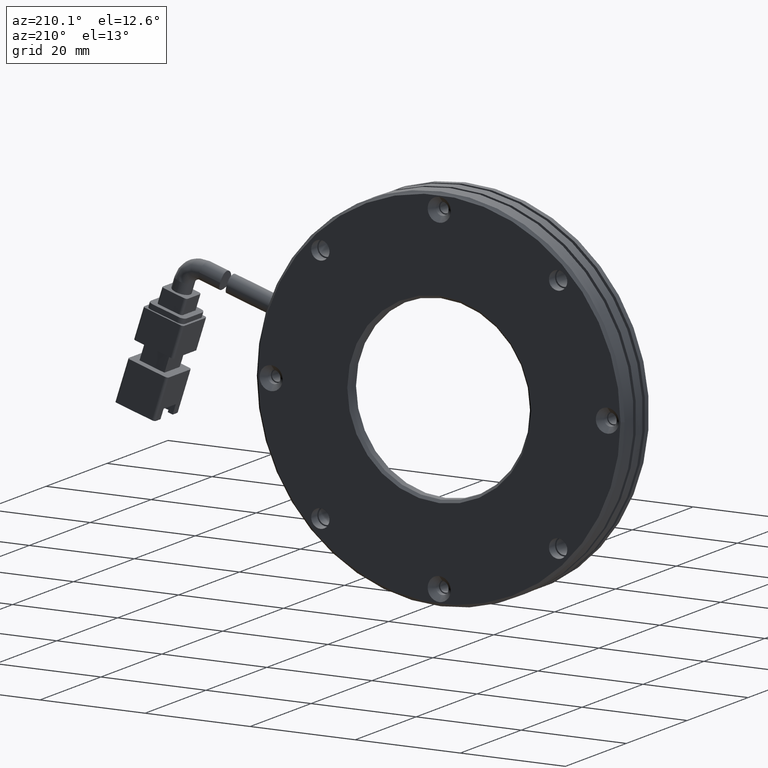
[diagram: clean part render]
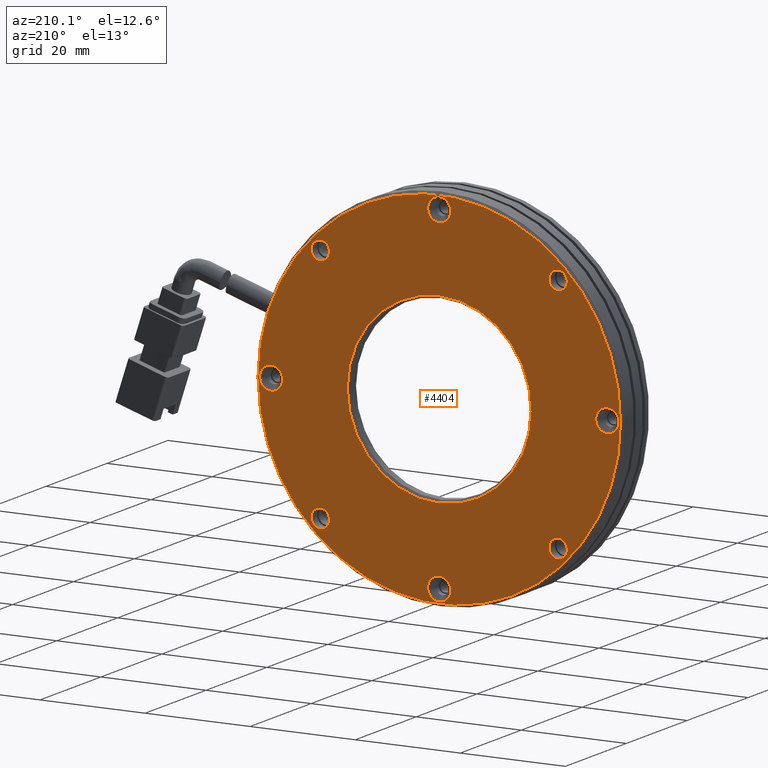
[diagram: same view with one face highlighted and labeled with its STEP entity id]
A machine part, auxiliary view. The second image highlights one B-rep face of the part: STEP entity #4404.
In plain terms, the highlighted planar face has unit normal (0, -1, 0).
Its self-contained STEP definition (entity closure, byte-faithful):
#5 = VERTEX_POINT ( 'NONE', #39972 ) ;
#243 = VERTEX_POINT ( 'NONE', #24588 ) ;
#325 = CARTESIAN_POINT ( 'NONE',  ( -5.709292144904342300, 13.26020291540425200, 17.49999999999998900 ) ) ;
#745 = DIRECTION ( 'NONE',  ( -0.0000000000000000000, 1.000000000000000000, -0.0000000000000000000 ) ) ;
#833 = CARTESIAN_POINT ( 'NONE',  ( -37.70929214490434600, 13.26020291534246800, -2.199999999959364700 ) ) ;
#1410 = ORIENTED_EDGE ( 'NONE', *, *, #10400, .F. ) ;
#1526 = ORIENTED_EDGE ( 'NONE', *, *, #14279, .F. ) ;
#1542 = CARTESIAN_POINT ( 'NONE',  ( 16.91812485306521900, 13.26020291540423700, 22.62741699796945800 ) ) ;
#1550 = ORIENTED_EDGE ( 'NONE', *, *, #30959, .F. ) ;
#1784 = VERTEX_POINT ( 'NONE', #17106 ) ;
#2097 = CIRCLE ( 'NONE', #4721, 2.199999999977081600 ) ;
#2103 = DIRECTION ( 'NONE',  ( -0.0000000000000000000, 1.000000000000000000, 0.0000000000000000000 ) ) ;
#2341 = AXIS2_PLACEMENT_3D ( 'NONE', #19301, #745, #22447 ) ;
#2414 = CARTESIAN_POINT ( 'NONE',  ( -5.709292144904231300, 13.26020291539931200, -34.19999999997710200 ) ) ;
#2694 = CARTESIAN_POINT ( 'NONE',  ( 16.91812485306537200, 13.26020291540423700, -24.37741699796933800 ) ) ;
#2752 = ORIENTED_EDGE ( 'NONE', *, *, #34980, .F. ) ;
#3038 = CIRCLE ( 'NONE', #28589, 2.199999999998453000 ) ;
#3215 = DIRECTION ( 'NONE',  ( -0.0000000000000000000, 1.000000000000000000, 0.0000000000000000000 ) ) ;
#3328 = CARTESIAN_POINT ( 'NONE',  ( -5.709292144904342300, 13.26020291540426600, -2.081668171172168500E-014 ) ) ;
#3634 = CARTESIAN_POINT ( 'NONE',  ( -5.709292144904342300, 13.26020291540425200, -2.081668171172168500E-014 ) ) ;
#3817 = AXIS2_PLACEMENT_3D ( 'NONE', #35354, #16694, #38471 ) ;
#4245 = FACE_BOUND ( 'NONE', #29174, .T. ) ;
#4404 = ADVANCED_FACE ( 'NONE', ( #40226, #5198, #37322, #29053, #20749, #12474, #4245, #36344, #28059, #19763 ), #16688, .F. ) ;
#4442 = AXIS2_PLACEMENT_3D ( 'NONE', #30152, #11515, #33306 ) ;
#4658 = DIRECTION ( 'NONE',  ( 0.0000000000000000000, 0.0000000000000000000, 1.000000000000000000 ) ) ;
#4721 = AXIS2_PLACEMENT_3D ( 'NONE', #7583, #29328, #10679 ) ;
#4821 = ORIENTED_EDGE ( 'NONE', *, *, #18277, .F. ) ;
#4826 = CIRCLE ( 'NONE', #35512, 1.749999999999994700 ) ;
#4980 = CIRCLE ( 'NONE', #7619, 1.749999999999991100 ) ;
#5198 = FACE_BOUND ( 'NONE', #21496, .T. ) ;
#5382 = CARTESIAN_POINT ( 'NONE',  ( -5.709292144904676300, 13.26020291539931200, 29.80000000000152800 ) ) ;
#5495 = VERTEX_POINT ( 'NONE', #11721 ) ;
#5617 = CARTESIAN_POINT ( 'NONE',  ( 16.91812485306521900, 13.26020291540423700, 24.37741699796944800 ) ) ;
#5618 = EDGE_LOOP ( 'NONE', ( #35154, #29003 ) ) ;
#5660 = CIRCLE ( 'NONE', #8803, 1.749999999999991100 ) ;
#6429 = DIRECTION ( 'NONE',  ( 1.000000000000000000, -2.011273595335428600E-016, 0.0000000000000000000 ) ) ;
#6649 = CARTESIAN_POINT ( 'NONE',  ( -37.70929214490434600, 13.26020291534246800, -1.994931997373328200E-014 ) ) ;
#6726 = DIRECTION ( 'NONE',  ( 0.0000000000000000000, 0.0000000000000000000, 1.000000000000000000 ) ) ;
#7084 = EDGE_CURVE ( 'NONE', #5, #29282, #37421, .T. ) ;
#7355 = DIRECTION ( 'NONE',  ( -0.0000000000000000000, 1.000000000000000000, -0.0000000000000000000 ) ) ;
#7583 = CARTESIAN_POINT ( 'NONE',  ( -5.709292144904231300, 13.26020291539931200, -32.00000000000002100 ) ) ;
#7619 = AXIS2_PLACEMENT_3D ( 'NONE', #1542, #23267, #4658 ) ;
#8204 = EDGE_CURVE ( 'NONE', #29077, #13063, #5660, .T. ) ;
#8521 = VERTEX_POINT ( 'NONE', #30853 ) ;
#8803 = AXIS2_PLACEMENT_3D ( 'NONE', #16971, #38747, #20119 ) ;
#9260 = CARTESIAN_POINT ( 'NONE',  ( -28.33670914287390000, 13.26020291540423700, 22.62741699796946200 ) ) ;
#9783 = DIRECTION ( 'NONE',  ( 0.0000000000000000000, 0.0000000000000000000, 1.000000000000000000 ) ) ;
#10400 = EDGE_CURVE ( 'NONE', #13646, #243, #4980, .T. ) ;
#10555 = DIRECTION ( 'NONE',  ( -0.0000000000000000000, 1.000000000000000000, -0.0000000000000000000 ) ) ;
#10560 = DIRECTION ( 'NONE',  ( 0.0000000000000000000, -1.000000000000000000, 0.0000000000000000000 ) ) ;
#10568 = DIRECTION ( 'NONE',  ( -1.982541115402065400E-016, -1.000000000000000000, 0.0000000000000000000 ) ) ;
#10679 = DIRECTION ( 'NONE',  ( 0.0000000000000000000, 0.0000000000000000000, 1.000000000000000000 ) ) ;
#10944 = EDGE_CURVE ( 'NONE', #1784, #36904, #21475, .T. ) ;
#11158 = VERTEX_POINT ( 'NONE', #2414 ) ;
#11515 = DIRECTION ( 'NONE',  ( -0.0000000000000000000, 1.000000000000000000, 0.0000000000000000000 ) ) ;
#11721 = CARTESIAN_POINT ( 'NONE',  ( -28.33670914287390000, 13.26020291540423700, 20.87741699796946500 ) ) ;
#12027 = DIRECTION ( 'NONE',  ( -0.0000000000000000000, 1.000000000000000000, -0.0000000000000000000 ) ) ;
#12123 = EDGE_CURVE ( 'NONE', #243, #13646, #36951, .T. ) ;
#12383 = DIRECTION ( 'NONE',  ( 0.0000000000000000000, 0.0000000000000000000, 1.000000000000000000 ) ) ;
#12474 = FACE_BOUND ( 'NONE', #23819, .T. ) ;
#12491 = CARTESIAN_POINT ( 'NONE',  ( 16.91812485306537200, 13.26020291540423700, -20.87741699796935500 ) ) ;
#12605 = CIRCLE ( 'NONE', #29148, 17.50000000000000700 ) ;
#12749 = CARTESIAN_POINT ( 'NONE',  ( -5.709292144904676300, 13.26020291539931200, 34.19999999999843300 ) ) ;
#12902 = AXIS2_PLACEMENT_3D ( 'NONE', #14147, #35921, #17266 ) ;
#13063 = VERTEX_POINT ( 'NONE', #2694 ) ;
#13190 = ORIENTED_EDGE ( 'NONE', *, *, #29525, .F. ) ;
#13232 = EDGE_CURVE ( 'NONE', #35002, #15424, #27523, .T. ) ;
#13646 = VERTEX_POINT ( 'NONE', #5617 ) ;
#13664 = EDGE_CURVE ( 'NONE', #17415, #31591, #40061, .T. ) ;
#14002 = CIRCLE ( 'NONE', #35181, 34.50000000000000000 ) ;
#14147 = CARTESIAN_POINT ( 'NONE',  ( 16.91812485306521900, 13.26020291540423700, 22.62741699796945800 ) ) ;
#14207 = EDGE_LOOP ( 'NONE', ( #1526, #24567 ) ) ;
#14234 = CIRCLE ( 'NONE', #34948, 1.749999999999991100 ) ;
#14259 = CARTESIAN_POINT ( 'NONE',  ( -5.709292144904676300, 13.26020291539931200, 31.99999999999997900 ) ) ;
#14279 = EDGE_CURVE ( 'NONE', #37949, #32578, #39065, .T. ) ;
#15028 = ORIENTED_EDGE ( 'NONE', *, *, #12123, .F. ) ;
#15424 = VERTEX_POINT ( 'NONE', #325 ) ;
#15475 = EDGE_CURVE ( 'NONE', #5495, #18290, #16809, .T. ) ;
#15624 = CARTESIAN_POINT ( 'NONE',  ( -37.70929214490434600, 13.26020291534246800, -1.994931997373328200E-014 ) ) ;
#15677 = DIRECTION ( 'NONE',  ( -0.0000000000000000000, 1.000000000000000000, 0.0000000000000000000 ) ) ;
#16688 = PLANE ( 'NONE',  #18864 ) ;
#16694 = DIRECTION ( 'NONE',  ( -0.0000000000000000000, 1.000000000000000000, 0.0000000000000000000 ) ) ;
#16809 = CIRCLE ( 'NONE', #2341, 1.749999999999994700 ) ;
#16971 = CARTESIAN_POINT ( 'NONE',  ( 16.91812485306537200, 13.26020291540423700, -22.62741699796934800 ) ) ;
#17106 = CARTESIAN_POINT ( 'NONE',  ( -28.33670914287374700, 13.26020291540423700, -20.87741699796966800 ) ) ;
#17266 = DIRECTION ( 'NONE',  ( 0.0000000000000000000, 0.0000000000000000000, 1.000000000000000000 ) ) ;
#17369 = DIRECTION ( 'NONE',  ( 0.0000000000000000000, 0.0000000000000000000, 1.000000000000000000 ) ) ;
#17415 = VERTEX_POINT ( 'NONE', #38608 ) ;
#17887 = EDGE_CURVE ( 'NONE', #11158, #36913, #2097, .T. ) ;
#18277 = EDGE_CURVE ( 'NONE', #36913, #11158, #37055, .T. ) ;
#18290 = VERTEX_POINT ( 'NONE', #31209 ) ;
#18321 = EDGE_LOOP ( 'NONE', ( #25419, #19468 ) ) ;
#18582 = ORIENTED_EDGE ( 'NONE', *, *, #37153, .F. ) ;
#18747 = DIRECTION ( 'NONE',  ( 0.0000000000000000000, 0.0000000000000000000, 1.000000000000000000 ) ) ;
#18864 = AXIS2_PLACEMENT_3D ( 'NONE', #29226, #10560, #32346 ) ;
#18895 = EDGE_CURVE ( 'NONE', #18290, #5495, #4826, .T. ) ;
#19034 = CARTESIAN_POINT ( 'NONE',  ( 26.29070785509565800, 13.26020291534246800, -2.199999999958921500 ) ) ;
#19169 = CIRCLE ( 'NONE', #26242, 2.199999999959123100 ) ;
#19211 = CARTESIAN_POINT ( 'NONE',  ( -28.33670914287374700, 13.26020291540423700, -24.37741699796965000 ) ) ;
#19301 = CARTESIAN_POINT ( 'NONE',  ( -28.33670914287390000, 13.26020291540423700, 22.62741699796946200 ) ) ;
#19337 = CARTESIAN_POINT ( 'NONE',  ( -5.709292144904231300, 13.26020291539931200, -29.80000000002294100 ) ) ;
#19468 = ORIENTED_EDGE ( 'NONE', *, *, #29359, .F. ) ;
#19629 = AXIS2_PLACEMENT_3D ( 'NONE', #3634, #25398, #6726 ) ;
#19763 = FACE_BOUND ( 'NONE', #19959, .T. ) ;
#19850 = AXIS2_PLACEMENT_3D ( 'NONE', #29221, #10555, #32340 ) ;
#19959 = EDGE_LOOP ( 'NONE', ( #18582, #36966 ) ) ;
#20103 = ORIENTED_EDGE ( 'NONE', *, *, #18895, .F. ) ;
#20119 = DIRECTION ( 'NONE',  ( 0.0000000000000000000, 0.0000000000000000000, 1.000000000000000000 ) ) ;
#20559 = AXIS2_PLACEMENT_3D ( 'NONE', #26022, #7355, #29118 ) ;
#20705 = CARTESIAN_POINT ( 'NONE',  ( -5.709292144904342300, 13.26020291540425200, -2.081668171172168500E-014 ) ) ;
#20749 = FACE_BOUND ( 'NONE', #14207, .T. ) ;
#21475 = CIRCLE ( 'NONE', #19850, 1.749999999999991100 ) ;
#21496 = EDGE_LOOP ( 'NONE', ( #33444, #2752 ) ) ;
#21808 = CARTESIAN_POINT ( 'NONE',  ( 26.29070785509565800, 13.26020291534246800, 2.016616040823038200E-013 ) ) ;
#22089 = ORIENTED_EDGE ( 'NONE', *, *, #17887, .F. ) ;
#22109 = EDGE_LOOP ( 'NONE', ( #1410, #15028 ) ) ;
#22129 = EDGE_CURVE ( 'NONE', #8521, #27214, #19169, .T. ) ;
#22447 = DIRECTION ( 'NONE',  ( 0.0000000000000000000, 0.0000000000000000000, 1.000000000000000000 ) ) ;
#22766 = EDGE_CURVE ( 'NONE', #32578, #37949, #3038, .T. ) ;
#23267 = DIRECTION ( 'NONE',  ( -0.0000000000000000000, 1.000000000000000000, -0.0000000000000000000 ) ) ;
#23606 = AXIS2_PLACEMENT_3D ( 'NONE', #3328, #25094, #6429 ) ;
#23729 = ORIENTED_EDGE ( 'NONE', *, *, #22129, .F. ) ;
#23802 = AXIS2_PLACEMENT_3D ( 'NONE', #15624, #37413, #18747 ) ;
#23817 = EDGE_LOOP ( 'NONE', ( #20103, #35209 ) ) ;
#23819 = EDGE_LOOP ( 'NONE', ( #23729, #13190 ) ) ;
#23848 = DIRECTION ( 'NONE',  ( 0.0000000000000000000, 0.0000000000000000000, 1.000000000000000000 ) ) ;
#24343 = EDGE_CURVE ( 'NONE', #13063, #29077, #26010, .T. ) ;
#24567 = ORIENTED_EDGE ( 'NONE', *, *, #22766, .F. ) ;
#24588 = CARTESIAN_POINT ( 'NONE',  ( 16.91812485306521900, 13.26020291540423700, 20.87741699796946500 ) ) ;
#24975 = DIRECTION ( 'NONE',  ( 0.0000000000000000000, 0.0000000000000000000, 1.000000000000000000 ) ) ;
#25094 = DIRECTION ( 'NONE',  ( -1.982541115402065400E-016, -1.000000000000000000, 0.0000000000000000000 ) ) ;
#25398 = DIRECTION ( 'NONE',  ( -0.0000000000000000000, 1.000000000000000000, 0.0000000000000000000 ) ) ;
#25419 = ORIENTED_EDGE ( 'NONE', *, *, #13664, .F. ) ;
#26010 = CIRCLE ( 'NONE', #20559, 1.749999999999991100 ) ;
#26022 = CARTESIAN_POINT ( 'NONE',  ( 16.91812485306537200, 13.26020291540423700, -22.62741699796934800 ) ) ;
#26132 = AXIS2_PLACEMENT_3D ( 'NONE', #34341, #15677, #37470 ) ;
#26242 = AXIS2_PLACEMENT_3D ( 'NONE', #21808, #3215, #24975 ) ;
#26637 = AXIS2_PLACEMENT_3D ( 'NONE', #6649, #28424, #9783 ) ;
#27214 = VERTEX_POINT ( 'NONE', #19034 ) ;
#27523 = CIRCLE ( 'NONE', #19629, 17.50000000000000700 ) ;
#28059 = FACE_OUTER_BOUND ( 'NONE', #18321, .T. ) ;
#28424 = DIRECTION ( 'NONE',  ( -0.0000000000000000000, 1.000000000000000000, 0.0000000000000000000 ) ) ;
#28589 = AXIS2_PLACEMENT_3D ( 'NONE', #14259, #36040, #17369 ) ;
#29003 = ORIENTED_EDGE ( 'NONE', *, *, #24343, .F. ) ;
#29053 = FACE_BOUND ( 'NONE', #22109, .T. ) ;
#29077 = VERTEX_POINT ( 'NONE', #12491 ) ;
#29118 = DIRECTION ( 'NONE',  ( 0.0000000000000000000, 0.0000000000000000000, 1.000000000000000000 ) ) ;
#29148 = AXIS2_PLACEMENT_3D ( 'NONE', #20705, #2103, #23848 ) ;
#29174 = EDGE_LOOP ( 'NONE', ( #4821, #22089 ) ) ;
#29221 = CARTESIAN_POINT ( 'NONE',  ( -28.33670914287374700, 13.26020291540423700, -22.62741699796966100 ) ) ;
#29226 = CARTESIAN_POINT ( 'NONE',  ( -22.70929214490434600, 13.26020291540425200, -2.081668171172168500E-014 ) ) ;
#29232 = CARTESIAN_POINT ( 'NONE',  ( -5.709292144904342300, 13.26020291540426600, -2.081668171172168500E-014 ) ) ;
#29282 = VERTEX_POINT ( 'NONE', #833 ) ;
#29328 = DIRECTION ( 'NONE',  ( -0.0000000000000000000, 1.000000000000000000, 0.0000000000000000000 ) ) ;
#29359 = EDGE_CURVE ( 'NONE', #31591, #17415, #14002, .T. ) ;
#29525 = EDGE_CURVE ( 'NONE', #27214, #8521, #31500, .T. ) ;
#30152 = CARTESIAN_POINT ( 'NONE',  ( 26.29070785509565800, 13.26020291534246800, 2.016616040823038200E-013 ) ) ;
#30672 = CARTESIAN_POINT ( 'NONE',  ( -28.33670914287374700, 13.26020291540423700, -22.62741699796966100 ) ) ;
#30853 = CARTESIAN_POINT ( 'NONE',  ( 26.29070785509565800, 13.26020291534246800, 2.199999999959324700 ) ) ;
#30959 = EDGE_CURVE ( 'NONE', #29282, #5, #35728, .T. ) ;
#31032 = DIRECTION ( 'NONE',  ( -0.0000000000000000000, 1.000000000000000000, -0.0000000000000000000 ) ) ;
#31209 = CARTESIAN_POINT ( 'NONE',  ( -28.33670914287390000, 13.26020291540423700, 24.37741699796945500 ) ) ;
#31500 = CIRCLE ( 'NONE', #4442, 2.199999999959123100 ) ;
#31571 = CARTESIAN_POINT ( 'NONE',  ( -40.20929214490434600, 13.26020291540427100, -1.656103408468463200E-014 ) ) ;
#31591 = VERTEX_POINT ( 'NONE', #31571 ) ;
#32340 = DIRECTION ( 'NONE',  ( 0.0000000000000000000, 0.0000000000000000000, 1.000000000000000000 ) ) ;
#32346 = DIRECTION ( 'NONE',  ( 0.0000000000000000000, -0.0000000000000000000, -1.000000000000000000 ) ) ;
#32355 = DIRECTION ( 'NONE',  ( 1.000000000000000000, -2.011273595335428600E-016, 0.0000000000000000000 ) ) ;
#32578 = VERTEX_POINT ( 'NONE', #5382 ) ;
#32758 = ORIENTED_EDGE ( 'NONE', *, *, #7084, .F. ) ;
#33306 = DIRECTION ( 'NONE',  ( 0.0000000000000000000, 0.0000000000000000000, 1.000000000000000000 ) ) ;
#33444 = ORIENTED_EDGE ( 'NONE', *, *, #10944, .F. ) ;
#33829 = DIRECTION ( 'NONE',  ( 0.0000000000000000000, 0.0000000000000000000, 1.000000000000000000 ) ) ;
#34341 = CARTESIAN_POINT ( 'NONE',  ( -5.709292144904231300, 13.26020291539931200, -32.00000000000002100 ) ) ;
#34948 = AXIS2_PLACEMENT_3D ( 'NONE', #30672, #12027, #33829 ) ;
#34980 = EDGE_CURVE ( 'NONE', #36904, #1784, #14234, .T. ) ;
#35002 = VERTEX_POINT ( 'NONE', #40039 ) ;
#35154 = ORIENTED_EDGE ( 'NONE', *, *, #8204, .F. ) ;
#35181 = AXIS2_PLACEMENT_3D ( 'NONE', #29232, #10568, #32355 ) ;
#35209 = ORIENTED_EDGE ( 'NONE', *, *, #15475, .F. ) ;
#35354 = CARTESIAN_POINT ( 'NONE',  ( -5.709292144904676300, 13.26020291539931200, 31.99999999999997900 ) ) ;
#35512 = AXIS2_PLACEMENT_3D ( 'NONE', #9260, #31032, #12383 ) ;
#35728 = CIRCLE ( 'NONE', #23802, 2.199999999959344700 ) ;
#35921 = DIRECTION ( 'NONE',  ( -0.0000000000000000000, 1.000000000000000000, -0.0000000000000000000 ) ) ;
#36040 = DIRECTION ( 'NONE',  ( -0.0000000000000000000, 1.000000000000000000, 0.0000000000000000000 ) ) ;
#36344 = FACE_BOUND ( 'NONE', #36602, .T. ) ;
#36602 = EDGE_LOOP ( 'NONE', ( #32758, #1550 ) ) ;
#36904 = VERTEX_POINT ( 'NONE', #19211 ) ;
#36913 = VERTEX_POINT ( 'NONE', #19337 ) ;
#36951 = CIRCLE ( 'NONE', #12902, 1.749999999999991100 ) ;
#36966 = ORIENTED_EDGE ( 'NONE', *, *, #13232, .F. ) ;
#37055 = CIRCLE ( 'NONE', #26132, 2.199999999977081600 ) ;
#37153 = EDGE_CURVE ( 'NONE', #15424, #35002, #12605, .T. ) ;
#37322 = FACE_BOUND ( 'NONE', #23817, .T. ) ;
#37413 = DIRECTION ( 'NONE',  ( -0.0000000000000000000, 1.000000000000000000, 0.0000000000000000000 ) ) ;
#37421 = CIRCLE ( 'NONE', #26637, 2.199999999959344700 ) ;
#37470 = DIRECTION ( 'NONE',  ( 0.0000000000000000000, 0.0000000000000000000, 1.000000000000000000 ) ) ;
#37949 = VERTEX_POINT ( 'NONE', #12749 ) ;
#38471 = DIRECTION ( 'NONE',  ( 0.0000000000000000000, 0.0000000000000000000, 1.000000000000000000 ) ) ;
#38608 = CARTESIAN_POINT ( 'NONE',  ( 28.79070785509566100, 13.26020291540425900, -2.081668171172168500E-014 ) ) ;
#38747 = DIRECTION ( 'NONE',  ( -0.0000000000000000000, 1.000000000000000000, -0.0000000000000000000 ) ) ;
#39065 = CIRCLE ( 'NONE', #3817, 2.199999999998453000 ) ;
#39972 = CARTESIAN_POINT ( 'NONE',  ( -37.70929214490434600, 13.26020291534246800, 2.199999999959324700 ) ) ;
#40039 = CARTESIAN_POINT ( 'NONE',  ( -5.709292144904340600, 13.26020291540425200, -17.50000000000002800 ) ) ;
#40061 = CIRCLE ( 'NONE', #23606, 34.50000000000000000 ) ;
#40226 = FACE_BOUND ( 'NONE', #5618, .T. ) ;